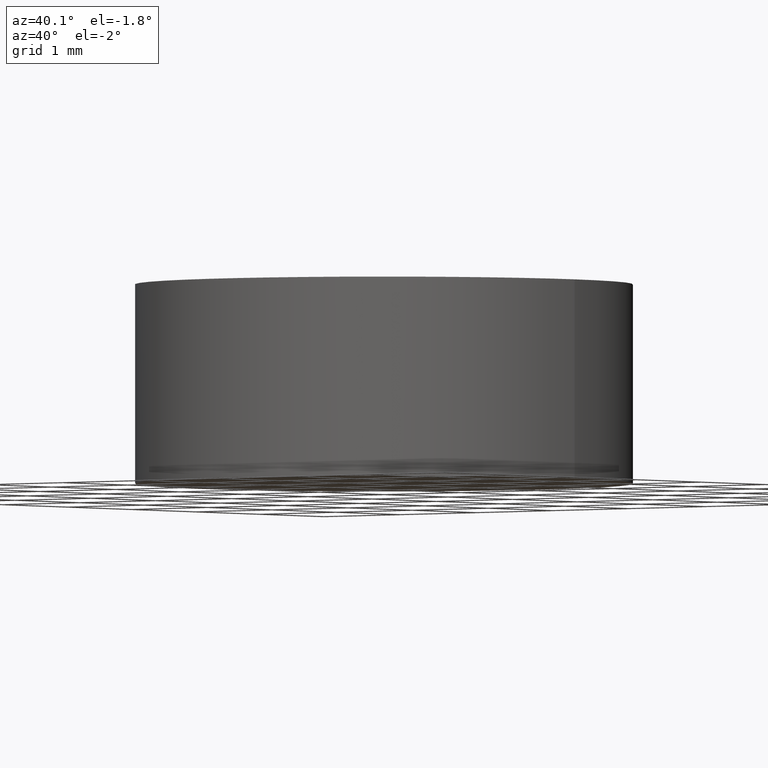
[diagram: clean part render]
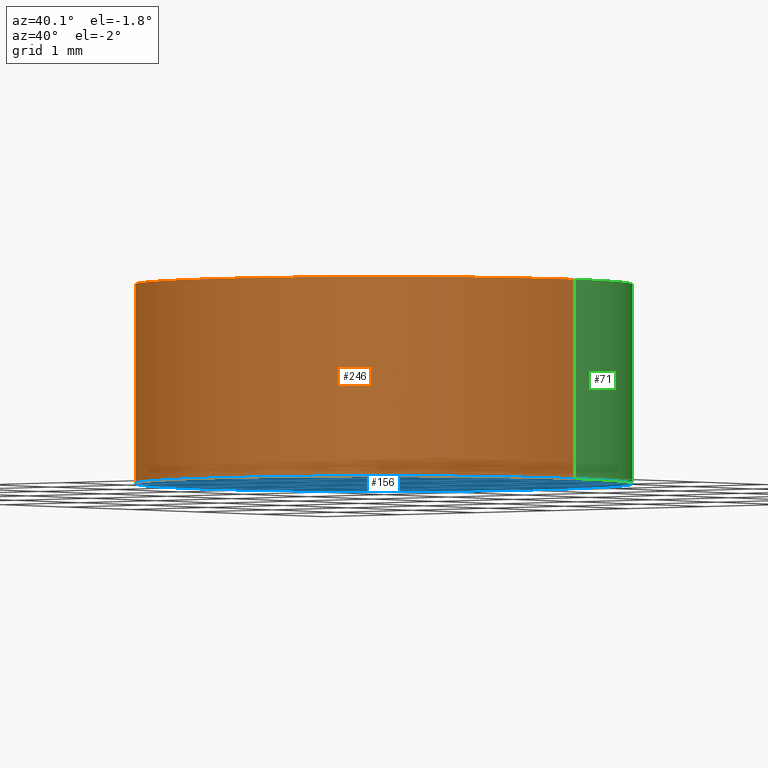
[diagram: same view with three faces highlighted in distinct colors, each labeled with its STEP entity id]
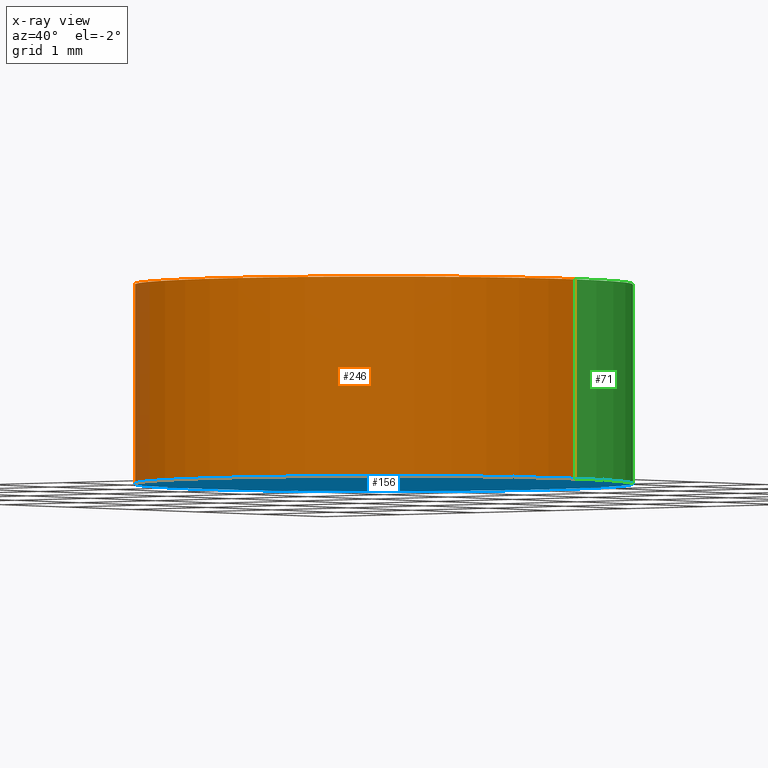
[diagram: x-ray of the same camera — body ghosted, the three highlighted faces saturated]
A machine part, auxiliary view with three faces highlighted in distinct colors.
The next image is the same camera in x-ray (body ghosted, the three faces saturated) — at least one of them is partly hidden behind the body in this view.
Their STEP definitions:

[orange] entity #246 — the highlighted cylindrical surface (partial cylindrical patch) has radius 2.5 mm, axis along (-0, -0, -1).
#3 = CARTESIAN_POINT ( 'NONE',  ( 2.500000000000002200, 3.061616997868386100E-016, 2.000000000000000000 ) ) ;
#12 = FACE_OUTER_BOUND ( 'NONE', #178, .T. ) ;
#20 = DIRECTION ( 'NONE',  ( -0.0000000000000000000, -0.0000000000000000000, -1.000000000000000000 ) ) ;
#21 = LINE ( 'NONE', #68, #173 ) ;
#26 = DIRECTION ( 'NONE',  ( 1.000000000000000000, 0.0000000000000000000, 0.0000000000000000000 ) ) ;
#29 = AXIS2_PLACEMENT_3D ( 'NONE', #80, #235, #83 ) ;
#32 = CIRCLE ( 'NONE', #29, 2.500000000000002200 ) ;
#36 = VERTEX_POINT ( 'NONE', #116 ) ;
#40 = CARTESIAN_POINT ( 'NONE',  ( -2.500000000000002200, 0.0000000000000000000, 0.0000000000000000000 ) ) ;
#45 = EDGE_CURVE ( 'NONE', #228, #74, #249, .T. ) ;
#58 = CARTESIAN_POINT ( 'NONE',  ( -2.500000000000002200, 0.0000000000000000000, 2.000000000000000000 ) ) ;
#68 = CARTESIAN_POINT ( 'NONE',  ( -2.500000000000002200, 0.0000000000000000000, 2.000000000000000000 ) ) ;
#70 = CYLINDRICAL_SURFACE ( 'NONE', #72, 2.500000000000002200 ) ;
#72 = AXIS2_PLACEMENT_3D ( 'NONE', #204, #79, #205 ) ;
#74 = VERTEX_POINT ( 'NONE', #230 ) ;
#77 = EDGE_CURVE ( 'NONE', #215, #228, #21, .T. ) ;
#79 = DIRECTION ( 'NONE',  ( -0.0000000000000000000, -0.0000000000000000000, -1.000000000000000000 ) ) ;
#80 = CARTESIAN_POINT ( 'NONE',  ( 0.0000000000000000000, 0.0000000000000000000, 2.000000000000000000 ) ) ;
#83 = DIRECTION ( 'NONE',  ( 1.000000000000000000, 0.0000000000000000000, 0.0000000000000000000 ) ) ;
#84 = VECTOR ( 'NONE', #20, 1000.000000000000000 ) ;
#88 = DIRECTION ( 'NONE',  ( -0.0000000000000000000, -0.0000000000000000000, -1.000000000000000000 ) ) ;
#91 = EDGE_CURVE ( 'NONE', #36, #74, #174, .T. ) ;
#116 = CARTESIAN_POINT ( 'NONE',  ( 2.500000000000002200, 3.061616997868386100E-016, 2.000000000000000000 ) ) ;
#121 = AXIS2_PLACEMENT_3D ( 'NONE', #193, #213, #26 ) ;
#125 = ORIENTED_EDGE ( 'NONE', *, *, #91, .F. ) ;
#133 = ORIENTED_EDGE ( 'NONE', *, *, #45, .T. ) ;
#141 = ORIENTED_EDGE ( 'NONE', *, *, #176, .F. ) ;
#164 = ORIENTED_EDGE ( 'NONE', *, *, #77, .T. ) ;
#173 = VECTOR ( 'NONE', #88, 1000.000000000000000 ) ;
#174 = LINE ( 'NONE', #3, #84 ) ;
#176 = EDGE_CURVE ( 'NONE', #215, #36, #32, .T. ) ;
#178 = EDGE_LOOP ( 'NONE', ( #125, #141, #164, #133 ) ) ;
#193 = CARTESIAN_POINT ( 'NONE',  ( 0.0000000000000000000, 0.0000000000000000000, 0.0000000000000000000 ) ) ;
#204 = CARTESIAN_POINT ( 'NONE',  ( 0.0000000000000000000, 0.0000000000000000000, 2.000000000000000000 ) ) ;
#205 = DIRECTION ( 'NONE',  ( -1.000000000000000000, 0.0000000000000000000, 0.0000000000000000000 ) ) ;
#213 = DIRECTION ( 'NONE',  ( 0.0000000000000000000, 0.0000000000000000000, 1.000000000000000000 ) ) ;
#215 = VERTEX_POINT ( 'NONE', #58 ) ;
#228 = VERTEX_POINT ( 'NONE', #40 ) ;
#230 = CARTESIAN_POINT ( 'NONE',  ( 2.500000000000002200, 3.061616997868386100E-016, 0.0000000000000000000 ) ) ;
#235 = DIRECTION ( 'NONE',  ( 0.0000000000000000000, 0.0000000000000000000, 1.000000000000000000 ) ) ;
#246 = ADVANCED_FACE ( 'NONE', ( #12 ), #70, .T. ) ;
#249 = CIRCLE ( 'NONE', #121, 2.500000000000002200 ) ;

[blue] entity #156 — the highlighted planar face has unit normal (0, 0, 1).
#13 = ORIENTED_EDGE ( 'NONE', *, *, #108, .F. ) ;
#26 = DIRECTION ( 'NONE',  ( 1.000000000000000000, 0.0000000000000000000, 0.0000000000000000000 ) ) ;
#38 = CARTESIAN_POINT ( 'NONE',  ( 0.0000000000000000000, 0.0000000000000000000, 0.0000000000000000000 ) ) ;
#39 = AXIS2_PLACEMENT_3D ( 'NONE', #124, #225, #103 ) ;
#40 = CARTESIAN_POINT ( 'NONE',  ( -2.500000000000002200, 0.0000000000000000000, 0.0000000000000000000 ) ) ;
#43 = AXIS2_PLACEMENT_3D ( 'NONE', #38, #207, #143 ) ;
#45 = EDGE_CURVE ( 'NONE', #228, #74, #249, .T. ) ;
#66 = CIRCLE ( 'NONE', #39, 2.500000000000002200 ) ;
#74 = VERTEX_POINT ( 'NONE', #230 ) ;
#103 = DIRECTION ( 'NONE',  ( 1.000000000000000000, 0.0000000000000000000, 0.0000000000000000000 ) ) ;
#108 = EDGE_CURVE ( 'NONE', #74, #228, #66, .T. ) ;
#121 = AXIS2_PLACEMENT_3D ( 'NONE', #193, #213, #26 ) ;
#124 = CARTESIAN_POINT ( 'NONE',  ( 0.0000000000000000000, 0.0000000000000000000, 0.0000000000000000000 ) ) ;
#129 = FACE_OUTER_BOUND ( 'NONE', #158, .T. ) ;
#143 = DIRECTION ( 'NONE',  ( 1.000000000000000000, 0.0000000000000000000, -0.0000000000000000000 ) ) ;
#145 = PLANE ( 'NONE',  #43 ) ;
#156 = ADVANCED_FACE ( 'NONE', ( #129 ), #145, .F. ) ;
#158 = EDGE_LOOP ( 'NONE', ( #231, #13 ) ) ;
#193 = CARTESIAN_POINT ( 'NONE',  ( 0.0000000000000000000, 0.0000000000000000000, 0.0000000000000000000 ) ) ;
#207 = DIRECTION ( 'NONE',  ( 0.0000000000000000000, 0.0000000000000000000, 1.000000000000000000 ) ) ;
#213 = DIRECTION ( 'NONE',  ( 0.0000000000000000000, 0.0000000000000000000, 1.000000000000000000 ) ) ;
#225 = DIRECTION ( 'NONE',  ( 0.0000000000000000000, 0.0000000000000000000, 1.000000000000000000 ) ) ;
#228 = VERTEX_POINT ( 'NONE', #40 ) ;
#230 = CARTESIAN_POINT ( 'NONE',  ( 2.500000000000002200, 3.061616997868386100E-016, 0.0000000000000000000 ) ) ;
#231 = ORIENTED_EDGE ( 'NONE', *, *, #45, .F. ) ;
#249 = CIRCLE ( 'NONE', #121, 2.500000000000002200 ) ;

[green] entity #71 — the highlighted cylindrical surface (partial cylindrical patch) has radius 2.5 mm, axis along (-0, -0, -1).
#3 = CARTESIAN_POINT ( 'NONE',  ( 2.500000000000002200, 3.061616997868386100E-016, 2.000000000000000000 ) ) ;
#20 = DIRECTION ( 'NONE',  ( -0.0000000000000000000, -0.0000000000000000000, -1.000000000000000000 ) ) ;
#21 = LINE ( 'NONE', #68, #173 ) ;
#27 = DIRECTION ( 'NONE',  ( 0.0000000000000000000, 0.0000000000000000000, 1.000000000000000000 ) ) ;
#28 = CARTESIAN_POINT ( 'NONE',  ( 0.0000000000000000000, 0.0000000000000000000, 2.000000000000000000 ) ) ;
#36 = VERTEX_POINT ( 'NONE', #116 ) ;
#39 = AXIS2_PLACEMENT_3D ( 'NONE', #124, #225, #103 ) ;
#40 = CARTESIAN_POINT ( 'NONE',  ( -2.500000000000002200, 0.0000000000000000000, 0.0000000000000000000 ) ) ;
#49 = DIRECTION ( 'NONE',  ( 1.000000000000000000, 0.0000000000000000000, 0.0000000000000000000 ) ) ;
#50 = CARTESIAN_POINT ( 'NONE',  ( 0.0000000000000000000, 0.0000000000000000000, 2.000000000000000000 ) ) ;
#57 = EDGE_CURVE ( 'NONE', #36, #215, #137, .T. ) ;
#58 = CARTESIAN_POINT ( 'NONE',  ( -2.500000000000002200, 0.0000000000000000000, 2.000000000000000000 ) ) ;
#66 = CIRCLE ( 'NONE', #39, 2.500000000000002200 ) ;
#67 = AXIS2_PLACEMENT_3D ( 'NONE', #50, #69, #113 ) ;
#68 = CARTESIAN_POINT ( 'NONE',  ( -2.500000000000002200, 0.0000000000000000000, 2.000000000000000000 ) ) ;
#69 = DIRECTION ( 'NONE',  ( -0.0000000000000000000, -0.0000000000000000000, -1.000000000000000000 ) ) ;
#71 = ADVANCED_FACE ( 'NONE', ( #119 ), #223, .T. ) ;
#74 = VERTEX_POINT ( 'NONE', #230 ) ;
#75 = ORIENTED_EDGE ( 'NONE', *, *, #57, .F. ) ;
#77 = EDGE_CURVE ( 'NONE', #215, #228, #21, .T. ) ;
#84 = VECTOR ( 'NONE', #20, 1000.000000000000000 ) ;
#88 = DIRECTION ( 'NONE',  ( -0.0000000000000000000, -0.0000000000000000000, -1.000000000000000000 ) ) ;
#91 = EDGE_CURVE ( 'NONE', #36, #74, #174, .T. ) ;
#98 = ORIENTED_EDGE ( 'NONE', *, *, #108, .T. ) ;
#103 = DIRECTION ( 'NONE',  ( 1.000000000000000000, 0.0000000000000000000, 0.0000000000000000000 ) ) ;
#108 = EDGE_CURVE ( 'NONE', #74, #228, #66, .T. ) ;
#109 = ORIENTED_EDGE ( 'NONE', *, *, #77, .F. ) ;
#113 = DIRECTION ( 'NONE',  ( -1.000000000000000000, 0.0000000000000000000, 0.0000000000000000000 ) ) ;
#116 = CARTESIAN_POINT ( 'NONE',  ( 2.500000000000002200, 3.061616997868386100E-016, 2.000000000000000000 ) ) ;
#119 = FACE_OUTER_BOUND ( 'NONE', #211, .T. ) ;
#124 = CARTESIAN_POINT ( 'NONE',  ( 0.0000000000000000000, 0.0000000000000000000, 0.0000000000000000000 ) ) ;
#134 = AXIS2_PLACEMENT_3D ( 'NONE', #28, #27, #49 ) ;
#137 = CIRCLE ( 'NONE', #134, 2.500000000000002200 ) ;
#173 = VECTOR ( 'NONE', #88, 1000.000000000000000 ) ;
#174 = LINE ( 'NONE', #3, #84 ) ;
#211 = EDGE_LOOP ( 'NONE', ( #75, #232, #98, #109 ) ) ;
#215 = VERTEX_POINT ( 'NONE', #58 ) ;
#223 = CYLINDRICAL_SURFACE ( 'NONE', #67, 2.500000000000002200 ) ;
#225 = DIRECTION ( 'NONE',  ( 0.0000000000000000000, 0.0000000000000000000, 1.000000000000000000 ) ) ;
#228 = VERTEX_POINT ( 'NONE', #40 ) ;
#230 = CARTESIAN_POINT ( 'NONE',  ( 2.500000000000002200, 3.061616997868386100E-016, 0.0000000000000000000 ) ) ;
#232 = ORIENTED_EDGE ( 'NONE', *, *, #91, .T. ) ;